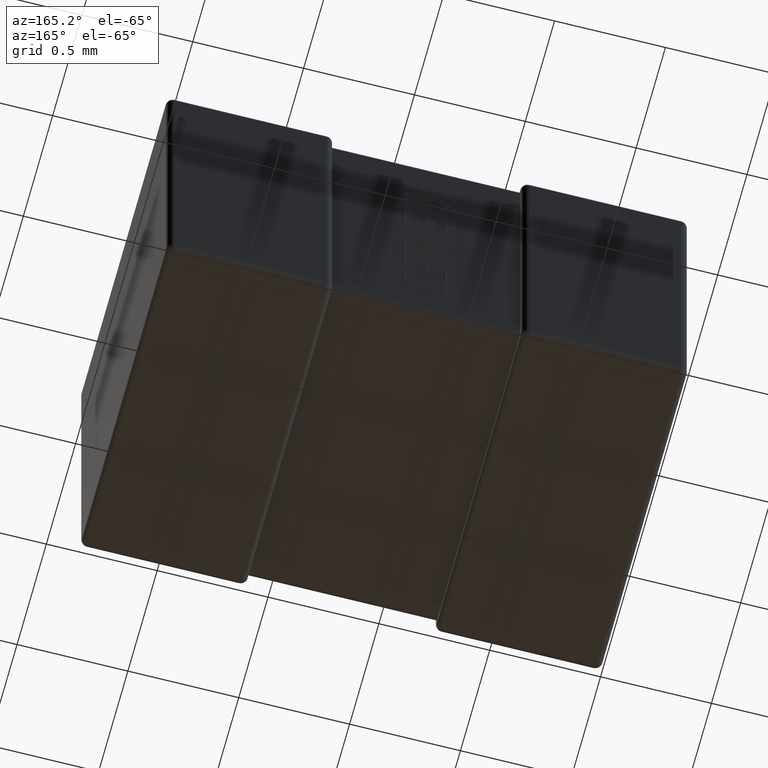
[diagram: clean part render]
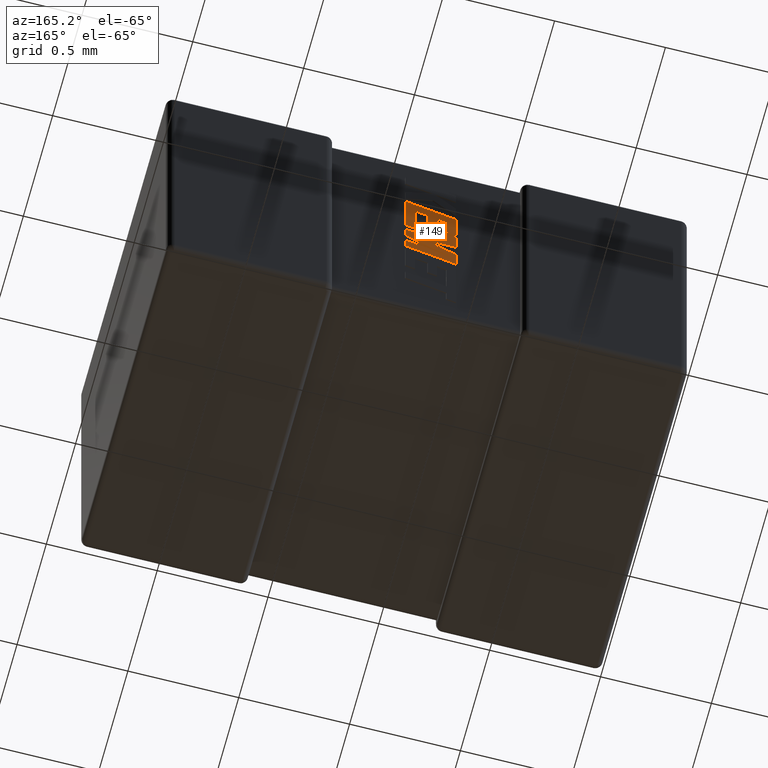
[diagram: same view with one face highlighted and labeled with its STEP entity id]
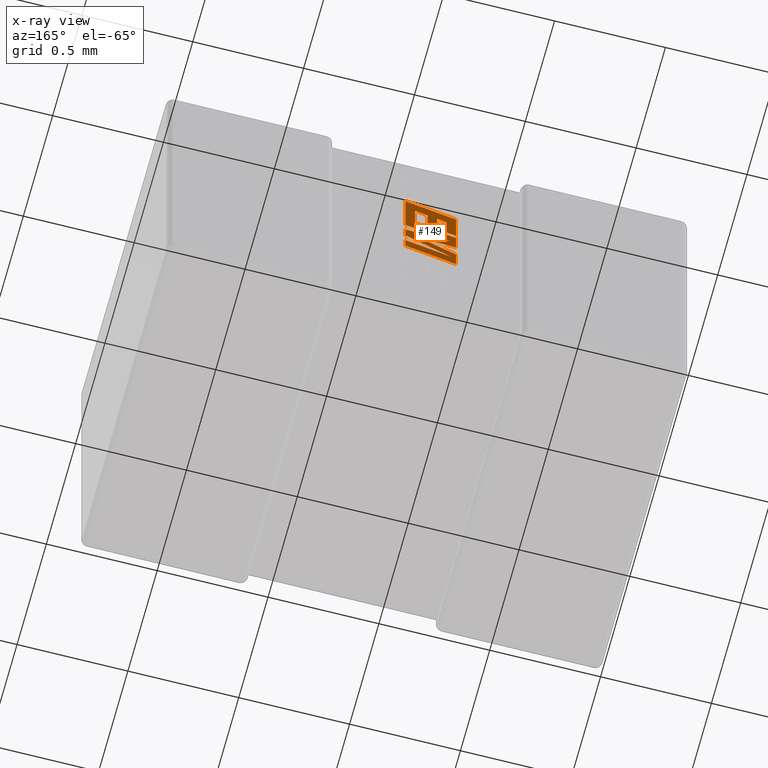
[diagram: x-ray of the same camera — body ghosted, the highlighted face saturated]
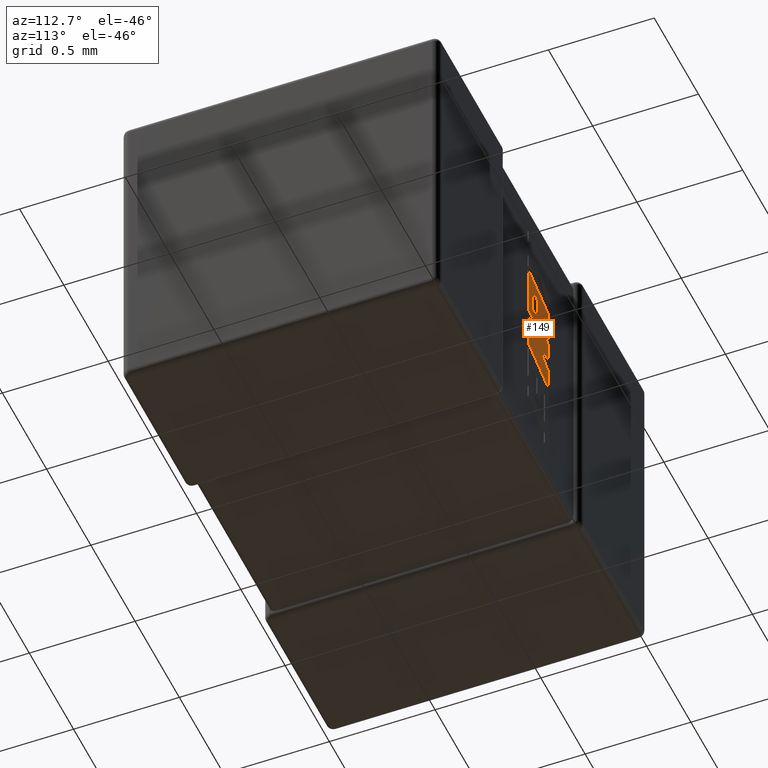
[diagram: same view with one face highlighted and labeled with its STEP entity id]
A machine part, auxiliary view. The second image highlights one B-rep face of the part: STEP entity #149.
The next image is the same camera in x-ray: the body ghosted, the highlighted face saturated — about 0% of this face is hidden behind the body in this view.
A second angle (auxiliary view) of the same face is appended — the face is thin or edge-on in the first view.
In plain terms, the highlighted planar face has unit normal (0, -1, 0).
Its self-contained STEP definition (entity closure, byte-faithful):
#13 = VECTOR ( 'NONE', #2280, 1000.000000000000000 ) ;
#27 = EDGE_CURVE ( 'NONE', #3495, #342, #4490, .T. ) ;
#52 = VECTOR ( 'NONE', #2458, 1000.000000000000000 ) ;
#62 = ORIENTED_EDGE ( 'NONE', *, *, #1393, .T. ) ;
#118 = CARTESIAN_POINT ( 'NONE',  ( 1.126889512155282880, 1.472760000000000069, -0.6416697486451697907 ) ) ;
#142 = VECTOR ( 'NONE', #2168, 1000.000000000000114 ) ;
#149 = ADVANCED_FACE ( 'NONE', ( #1443 ), #3380, .F. ) ;
#198 = VECTOR ( 'NONE', #343, 1000.000000000000227 ) ;
#199 = CARTESIAN_POINT ( 'NONE',  ( 1.269000000000003681, 1.472760000000000069, -0.8406046158351553332 ) ) ;
#220 = CARTESIAN_POINT ( 'NONE',  ( 1.041132956314514857, 1.472760000000000069, -0.5039962945937563887 ) ) ;
#286 = CARTESIAN_POINT ( 'NONE',  ( 1.041132956314514857, 1.472760000000000069, -0.7921057084777192170 ) ) ;
#301 = EDGE_CURVE ( 'NONE', #2508, #3630, #1745, .T. ) ;
#342 = VERTEX_POINT ( 'NONE', #3233 ) ;
#343 = DIRECTION ( 'NONE',  ( 0.9984327301130250243, 0.000000000000000000, 0.05596501978067341954 ) ) ;
#348 = ORIENTED_EDGE ( 'NONE', *, *, #301, .T. ) ;
#365 = ORIENTED_EDGE ( 'NONE', *, *, #4276, .T. ) ;
#375 = ORIENTED_EDGE ( 'NONE', *, *, #1326, .T. ) ;
#423 = ORIENTED_EDGE ( 'NONE', *, *, #425, .T. ) ;
#425 = EDGE_CURVE ( 'NONE', #4675, #2217, #2293, .T. ) ;
#436 = VECTOR ( 'NONE', #3106, 1000.000000000000114 ) ;
#439 = VECTOR ( 'NONE', #2688, 1000.000000000000114 ) ;
#486 = EDGE_CURVE ( 'NONE', #2197, #3834, #1146, .T. ) ;
#519 = EDGE_CURVE ( 'NONE', #4228, #3495, #2364, .T. ) ;
#550 = ORIENTED_EDGE ( 'NONE', *, *, #3894, .T. ) ;
#589 = VECTOR ( 'NONE', #4649, 1000.000000000000114 ) ;
#644 = LINE ( 'NONE', #3972, #4596 ) ;
#655 = VERTEX_POINT ( 'NONE', #3340 ) ;
#696 = DIRECTION ( 'NONE',  ( 0.000000000000000000, 0.000000000000000000, -1.000000000000000000 ) ) ;
#710 = VERTEX_POINT ( 'NONE', #2134 ) ;
#770 = CARTESIAN_POINT ( 'NONE',  ( 1.269000000000003681, 1.472760000000000069, -0.7307852580555117550 ) ) ;
#793 = DIRECTION ( 'NONE',  ( 0.9610029908221285888, 0.000000000000000000, 0.2765379750249931101 ) ) ;
#846 = CARTESIAN_POINT ( 'NONE',  ( 1.269000000000003681, 1.472760000000000069, -0.8985091539642460212 ) ) ;
#850 = ORIENTED_EDGE ( 'NONE', *, *, #1537, .T. ) ;
#890 = DIRECTION ( 'NONE',  ( 0.000000000000000000, 0.000000000000000000, -1.000000000000000000 ) ) ;
#1070 = EDGE_CURVE ( 'NONE', #710, #4675, #3564, .T. ) ;
#1114 = AXIS2_PLACEMENT_3D ( 'NONE', #1819, #3624, #4119 ) ;
#1116 = LINE ( 'NONE', #2580, #2171 ) ;
#1123 = VECTOR ( 'NONE', #1722, 1000.000000000000227 ) ;
#1141 = ORIENTED_EDGE ( 'NONE', *, *, #1424, .T. ) ;
#1146 = LINE ( 'NONE', #4410, #3395 ) ;
#1160 = DIRECTION ( 'NONE',  ( -0.9615454294334447871, 0.000000000000000000, -0.2746459304917006072 ) ) ;
#1167 = DIRECTION ( 'NONE',  ( 0.000000000000000000, 0.000000000000000000, 1.000000000000000000 ) ) ;
#1326 = EDGE_CURVE ( 'NONE', #655, #2486, #3789, .T. ) ;
#1336 = EDGE_CURVE ( 'NONE', #3763, #4186, #1663, .T. ) ;
#1393 = EDGE_CURVE ( 'NONE', #3630, #1982, #3434, .T. ) ;
#1424 = EDGE_CURVE ( 'NONE', #3834, #3763, #644, .T. ) ;
#1437 = VECTOR ( 'NONE', #696, 1000.000000000000000 ) ;
#1443 = FACE_OUTER_BOUND ( 'NONE', #3445, .T. ) ;
#1454 = CARTESIAN_POINT ( 'NONE',  ( 1.269000000000003681, 1.472760000000000069, -0.7915325740813675681 ) ) ;
#1490 = LINE ( 'NONE', #1984, #3839 ) ;
#1527 = LINE ( 'NONE', #1635, #3848 ) ;
#1537 = EDGE_CURVE ( 'NONE', #2217, #3643, #1490, .T. ) ;
#1607 = CARTESIAN_POINT ( 'NONE',  ( 1.269000000000003681, 1.472760000000000069, -0.6839081761791220293 ) ) ;
#1610 = EDGE_CURVE ( 'NONE', #4186, #3740, #3120, .T. ) ;
#1615 = EDGE_CURVE ( 'NONE', #3943, #2508, #1653, .T. ) ;
#1635 = CARTESIAN_POINT ( 'NONE',  ( 1.041132956314514857, 1.472760000000000069, -0.6950651962186354949 ) ) ;
#1653 = LINE ( 'NONE', #3102, #1123 ) ;
#1663 = LINE ( 'NONE', #3110, #439 ) ;
#1722 = DIRECTION ( 'NONE',  ( -0.8843386665637651411, 0.000000000000000000, -0.4668459304955136502 ) ) ;
#1745 = LINE ( 'NONE', #4262, #589 ) ;
#1819 = CARTESIAN_POINT ( 'NONE',  ( -0.2601923135456278291, 1.472760000000000069, 0.003507179810070972133 ) ) ;
#1836 = CARTESIAN_POINT ( 'NONE',  ( 1.269000000000003681, 1.472760000000000069, -0.8406046158351553332 ) ) ;
#1877 = VECTOR ( 'NONE', #3326, 1000.000000000000000 ) ;
#1879 = CARTESIAN_POINT ( 'NONE',  ( 1.084506278058296802, 1.472760000000000069, -0.6600178949437544018 ) ) ;
#1886 = CARTESIAN_POINT ( 'NONE',  ( 1.041132956314514857, 1.472760000000000069, -0.6950651962186354949 ) ) ;
#1893 = CARTESIAN_POINT ( 'NONE',  ( 1.084506278058296802, 1.472760000000000069, -0.5561993412986168117 ) ) ;
#1935 = EDGE_CURVE ( 'NONE', #3643, #655, #3959, .T. ) ;
#1945 = CARTESIAN_POINT ( 'NONE',  ( 1.269000000000003681, 1.472760000000000069, -0.7307852580555117550 ) ) ;
#1982 = VERTEX_POINT ( 'NONE', #846 ) ;
#1984 = CARTESIAN_POINT ( 'NONE',  ( 1.169014311898064706, 1.472760000000000069, -0.6296376548220525837 ) ) ;
#1993 = EDGE_CURVE ( 'NONE', #3740, #3554, #1527, .T. ) ;
#2000 = CARTESIAN_POINT ( 'NONE',  ( 1.203924100055729252, 1.472760000000000069, -0.7833425935635931481 ) ) ;
#2020 = DIRECTION ( 'NONE',  ( -0.9601763114327565019, 0.000000000000000000, -0.2793947940878393488 ) ) ;
#2080 = CARTESIAN_POINT ( 'NONE',  ( 1.169014311898064706, 1.472760000000000069, -0.5318483123047624828 ) ) ;
#2111 = DIRECTION ( 'NONE',  ( 0.000000000000000000, 0.000000000000000000, 1.000000000000000000 ) ) ;
#2134 = CARTESIAN_POINT ( 'NONE',  ( 1.225648156714193471, 1.472760000000000069, -0.5157117543673824800 ) ) ;
#2145 = ORIENTED_EDGE ( 'NONE', *, *, #1993, .T. ) ;
#2159 = LINE ( 'NONE', #2550, #52 ) ;
#2168 = DIRECTION ( 'NONE',  ( -0.9617234872620624708, 0.000000000000000000, -0.2740217765953968376 ) ) ;
#2171 = VECTOR ( 'NONE', #793, 1000.000000000000114 ) ;
#2197 = VERTEX_POINT ( 'NONE', #4256 ) ;
#2210 = LINE ( 'NONE', #2227, #13 ) ;
#2217 = VERTEX_POINT ( 'NONE', #3531 ) ;
#2227 = CARTESIAN_POINT ( 'NONE',  ( 1.084506278058296802, 1.472760000000000069, -0.6600178949437544018 ) ) ;
#2255 = EDGE_CURVE ( 'NONE', #2486, #4083, #2883, .T. ) ;
#2280 = DIRECTION ( 'NONE',  ( -0.9619530280415479195, 0.000000000000000000, -0.2732148821746301914 ) ) ;
#2293 = LINE ( 'NONE', #2979, #1877 ) ;
#2302 = ORIENTED_EDGE ( 'NONE', *, *, #519, .T. ) ;
#2351 = VECTOR ( 'NONE', #3260, 1000.000000000000000 ) ;
#2364 = LINE ( 'NONE', #3768, #4588 ) ;
#2381 = ORIENTED_EDGE ( 'NONE', *, *, #3123, .T. ) ;
#2445 = VECTOR ( 'NONE', #4257, 1000.000000000000000 ) ;
#2458 = DIRECTION ( 'NONE',  ( 0.000000000000000000, 0.000000000000000000, 1.000000000000000000 ) ) ;
#2486 = VERTEX_POINT ( 'NONE', #1893 ) ;
#2508 = VERTEX_POINT ( 'NONE', #4035 ) ;
#2509 = CARTESIAN_POINT ( 'NONE',  ( 1.269000000000003681, 1.472760000000000069, -0.4384253323412780623 ) ) ;
#2513 = ORIENTED_EDGE ( 'NONE', *, *, #3063, .T. ) ;
#2535 = EDGE_CURVE ( 'NONE', #4083, #4429, #2210, .T. ) ;
#2536 = LINE ( 'NONE', #3563, #198 ) ;
#2550 = CARTESIAN_POINT ( 'NONE',  ( 1.041132956314514857, 1.472760000000000069, -0.6723368301145032921 ) ) ;
#2580 = CARTESIAN_POINT ( 'NONE',  ( 1.041132956314514857, 1.472760000000000069, -0.5039962945937563887 ) ) ;
#2667 = DIRECTION ( 'NONE',  ( 0.000000000000000000, 0.000000000000000000, -1.000000000000000000 ) ) ;
#2688 = DIRECTION ( 'NONE',  ( -0.9985542843760948362, 0.000000000000000000, -0.05375259206908061110 ) ) ;
#2710 = DIRECTION ( 'NONE',  ( 0.000000000000000000, 0.000000000000000000, -1.000000000000000000 ) ) ;
#2735 = CARTESIAN_POINT ( 'NONE',  ( 1.041132956314514857, 1.472760000000000069, -0.6723368301145032921 ) ) ;
#2883 = LINE ( 'NONE', #4285, #1437 ) ;
#2913 = ORIENTED_EDGE ( 'NONE', *, *, #1610, .T. ) ;
#2979 = CARTESIAN_POINT ( 'NONE',  ( 1.169014311898064706, 1.472760000000000069, -0.5318483123047624828 ) ) ;
#2986 = ORIENTED_EDGE ( 'NONE', *, *, #1615, .T. ) ;
#2996 = LINE ( 'NONE', #1945, #3641 ) ;
#2998 = VERTEX_POINT ( 'NONE', #770 ) ;
#3032 = ORIENTED_EDGE ( 'NONE', *, *, #486, .T. ) ;
#3063 = EDGE_CURVE ( 'NONE', #3554, #710, #3933, .T. ) ;
#3074 = CARTESIAN_POINT ( 'NONE',  ( 1.269000000000003681, 1.472760000000000069, -0.8985091539642460212 ) ) ;
#3102 = CARTESIAN_POINT ( 'NONE',  ( 1.269000000000003681, 1.472760000000000069, -0.7915325740813675681 ) ) ;
#3106 = DIRECTION ( 'NONE',  ( -0.9611638845408968512, 0.000000000000000000, -0.2759782365590690012 ) ) ;
#3110 = CARTESIAN_POINT ( 'NONE',  ( 1.203924100055729252, 1.472760000000000069, -0.7833425935635931481 ) ) ;
#3112 = DIRECTION ( 'NONE',  ( 0.9610853065513847993, 0.000000000000000000, 0.2762517575166369976 ) ) ;
#3120 = LINE ( 'NONE', #286, #4133 ) ;
#3123 = EDGE_CURVE ( 'NONE', #2998, #3943, #2996, .T. ) ;
#3170 = VECTOR ( 'NONE', #2020, 1000.000000000000114 ) ;
#3173 = CARTESIAN_POINT ( 'NONE',  ( 1.225648156714193471, 1.472760000000000069, -0.6420286467557699828 ) ) ;
#3233 = CARTESIAN_POINT ( 'NONE',  ( 1.066135960447848641, 1.472760000000000069, -0.7421563696426072276 ) ) ;
#3251 = DIRECTION ( 'NONE',  ( 0.8958676361826827250, 0.000000000000000000, 0.4443210308329466618 ) ) ;
#3260 = DIRECTION ( 'NONE',  ( 0.000000000000000000, 0.000000000000000000, 1.000000000000000000 ) ) ;
#3298 = ORIENTED_EDGE ( 'NONE', *, *, #2255, .T. ) ;
#3326 = DIRECTION ( 'NONE',  ( 0.000000000000000000, 0.000000000000000000, -1.000000000000000000 ) ) ;
#3340 = CARTESIAN_POINT ( 'NONE',  ( 1.126889512155282880, 1.472760000000000069, -0.5438665490579562833 ) ) ;
#3380 = PLANE ( 'NONE',  #1114 ) ;
#3395 = VECTOR ( 'NONE', #1167, 1000.000000000000000 ) ;
#3431 = EDGE_CURVE ( 'NONE', #1982, #2197, #3871, .T. ) ;
#3432 = ORIENTED_EDGE ( 'NONE', *, *, #1935, .T. ) ;
#3434 = LINE ( 'NONE', #199, #3618 ) ;
#3445 = EDGE_LOOP ( 'NONE', ( #3032, #1141, #4666, #2913, #2145, #2513, #4221, #423, #850, #3432, #375, #3298, #4562, #365, #3606, #2302, #3769, #550, #2381, #2986, #348, #62, #4638 ) ) ;
#3466 = CARTESIAN_POINT ( 'NONE',  ( 1.041132956314514857, 1.472760000000000069, -0.8640816736198583259 ) ) ;
#3486 = CARTESIAN_POINT ( 'NONE',  ( 1.041132956314514857, 1.472760000000000069, -0.7921057084777192170 ) ) ;
#3495 = VERTEX_POINT ( 'NONE', #3822 ) ;
#3507 = CARTESIAN_POINT ( 'NONE',  ( 1.126889512155282880, 1.472760000000000069, -0.5438665490579562833 ) ) ;
#3531 = CARTESIAN_POINT ( 'NONE',  ( 1.169014311898064706, 1.472760000000000069, -0.6296376548220525837 ) ) ;
#3554 = VERTEX_POINT ( 'NONE', #3173 ) ;
#3563 = CARTESIAN_POINT ( 'NONE',  ( 1.066135960447848641, 1.472760000000000069, -0.7421563696426072276 ) ) ;
#3564 = LINE ( 'NONE', #3585, #142 ) ;
#3585 = CARTESIAN_POINT ( 'NONE',  ( 1.225648156714193471, 1.472760000000000069, -0.5157117543673824800 ) ) ;
#3606 = ORIENTED_EDGE ( 'NONE', *, *, #4037, .T. ) ;
#3618 = VECTOR ( 'NONE', #890, 1000.000000000000000 ) ;
#3624 = DIRECTION ( 'NONE',  ( 0.000000000000000000, -1.000000000000000000, 0.000000000000000000 ) ) ;
#3630 = VERTEX_POINT ( 'NONE', #1836 ) ;
#3641 = VECTOR ( 'NONE', #2667, 1000.000000000000000 ) ;
#3643 = VERTEX_POINT ( 'NONE', #118 ) ;
#3740 = VERTEX_POINT ( 'NONE', #1886 ) ;
#3763 = VERTEX_POINT ( 'NONE', #2000 ) ;
#3768 = CARTESIAN_POINT ( 'NONE',  ( 1.269000000000003681, 1.472760000000000069, -0.4384253323412780623 ) ) ;
#3769 = ORIENTED_EDGE ( 'NONE', *, *, #27, .T. ) ;
#3789 = LINE ( 'NONE', #3507, #3170 ) ;
#3822 = CARTESIAN_POINT ( 'NONE',  ( 1.269000000000003681, 1.472760000000000069, -0.6839081761791220293 ) ) ;
#3834 = VERTEX_POINT ( 'NONE', #3466 ) ;
#3839 = VECTOR ( 'NONE', #1160, 1000.000000000000114 ) ;
#3848 = VECTOR ( 'NONE', #3112, 1000.000000000000000 ) ;
#3871 = LINE ( 'NONE', #3074, #4264 ) ;
#3894 = EDGE_CURVE ( 'NONE', #342, #2998, #2536, .T. ) ;
#3933 = LINE ( 'NONE', #3974, #2445 ) ;
#3943 = VERTEX_POINT ( 'NONE', #1454 ) ;
#3959 = LINE ( 'NONE', #4651, #2351 ) ;
#3972 = CARTESIAN_POINT ( 'NONE',  ( 1.041132956314514857, 1.472760000000000069, -0.8640816736198583259 ) ) ;
#3974 = CARTESIAN_POINT ( 'NONE',  ( 1.225648156714193471, 1.472760000000000069, -0.6420286467557699828 ) ) ;
#4035 = CARTESIAN_POINT ( 'NONE',  ( 1.065159037018030608, 1.472760000000000069, -0.8991410363531673333 ) ) ;
#4037 = EDGE_CURVE ( 'NONE', #4413, #4228, #1116, .T. ) ;
#4083 = VERTEX_POINT ( 'NONE', #1879 ) ;
#4119 = DIRECTION ( 'NONE',  ( 0.000000000000000000, 0.000000000000000000, -1.000000000000000000 ) ) ;
#4133 = VECTOR ( 'NONE', #2111, 1000.000000000000000 ) ;
#4186 = VERTEX_POINT ( 'NONE', #3486 ) ;
#4221 = ORIENTED_EDGE ( 'NONE', *, *, #1070, .T. ) ;
#4228 = VERTEX_POINT ( 'NONE', #2509 ) ;
#4256 = CARTESIAN_POINT ( 'NONE',  ( 1.041132956314514857, 1.472760000000000069, -0.9640226091935145680 ) ) ;
#4257 = DIRECTION ( 'NONE',  ( 0.000000000000000000, 0.000000000000000000, 1.000000000000000000 ) ) ;
#4262 = CARTESIAN_POINT ( 'NONE',  ( 1.065159037018030608, 1.472760000000000069, -0.8991410363531673333 ) ) ;
#4264 = VECTOR ( 'NONE', #4540, 1000.000000000000114 ) ;
#4276 = EDGE_CURVE ( 'NONE', #4429, #4413, #2159, .T. ) ;
#4285 = CARTESIAN_POINT ( 'NONE',  ( 1.084506278058296802, 1.472760000000000069, -0.5561993412986168117 ) ) ;
#4410 = CARTESIAN_POINT ( 'NONE',  ( 1.041132956314514857, 1.472760000000000069, -0.9640226091935145680 ) ) ;
#4413 = VERTEX_POINT ( 'NONE', #220 ) ;
#4429 = VERTEX_POINT ( 'NONE', #2735 ) ;
#4490 = LINE ( 'NONE', #1607, #436 ) ;
#4540 = DIRECTION ( 'NONE',  ( -0.9610674221107078363, 0.000000000000000000, -0.2763139702539095244 ) ) ;
#4562 = ORIENTED_EDGE ( 'NONE', *, *, #2535, .T. ) ;
#4588 = VECTOR ( 'NONE', #2710, 1000.000000000000000 ) ;
#4596 = VECTOR ( 'NONE', #3251, 1000.000000000000114 ) ;
#4638 = ORIENTED_EDGE ( 'NONE', *, *, #3431, .T. ) ;
#4649 = DIRECTION ( 'NONE',  ( 0.9611542233438712390, 0.000000000000000000, 0.2760118818968482213 ) ) ;
#4651 = CARTESIAN_POINT ( 'NONE',  ( 1.126889512155282880, 1.472760000000000069, -0.6416697486451697907 ) ) ;
#4666 = ORIENTED_EDGE ( 'NONE', *, *, #1336, .T. ) ;
#4675 = VERTEX_POINT ( 'NONE', #2080 ) ;